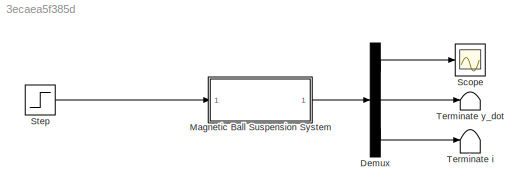
MODEL slx_3ecaea5f385d
KIND model
CONFIG AbsTol = auto
CONFIG EnableMultiTasking = off
CONFIG FixedStep = auto
CONFIG MaxStep = auto
CONFIG MinStep = auto
CONFIG RelTol = 1e-3
CONFIG SampleTimeConstraint = Unconstrained
CONFIG Solver = VariableStepAuto
CONFIG SolverName = VariableStepAuto
CONFIG StartTime = 0.0
CONFIG StopTime = 2.0
BLOCK [Demux] Demux
  DisplayOption = bar
  Outputs = 3
  Ports = [1, 3]
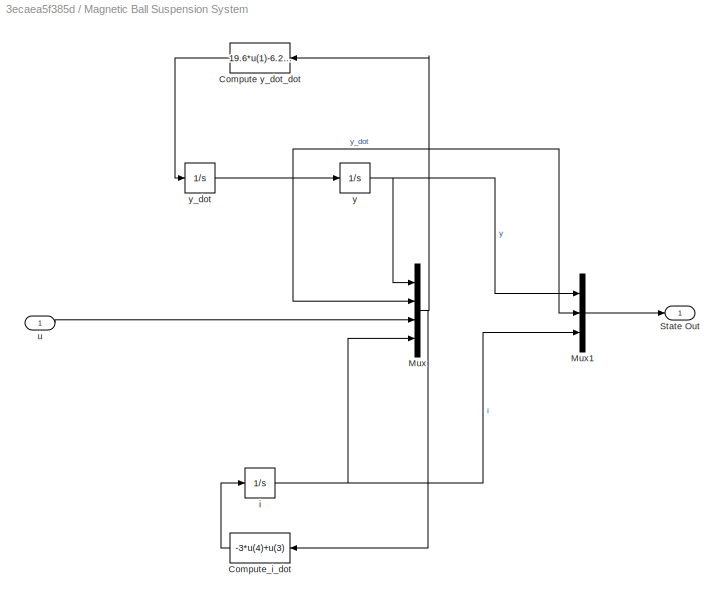
BLOCK [SubSystem] Magnetic Ball Suspension System
  Ports = [1, 1]
  RequestExecContextInheritance = off
BLOCK [Fcn] Magnetic Ball Suspension System/Compute y_dot_dot
  Expr = 19.6*u(1)-6.261*u(4)
BLOCK [Fcn] Magnetic Ball Suspension System/Compute_i_dot
  Expr = -3*u(4)+u(3)
BLOCK [Mux] Magnetic Ball Suspension System/Mux
  DisplayOption = bar
  Ports = [4, 1]
BLOCK [Mux] Magnetic Ball Suspension System/Mux1
  DisplayOption = bar
  Inputs = 3
  Ports = [3, 1]
BLOCK [Outport] Magnetic Ball Suspension System/State Out
  IconDisplay = Port number
BLOCK [Integrator] Magnetic Ball Suspension System/i
  Ports = [1, 1]
BLOCK [Inport] Magnetic Ball Suspension System/u
  IconDisplay = Port number
BLOCK [Integrator] Magnetic Ball Suspension System/y
  Ports = [1, 1]
BLOCK [Integrator] Magnetic Ball Suspension System/y_dot
  Ports = [1, 1]
BLOCK [Scope] Scope
  Floating = off
  NumInputPorts = 1
  Ports = [1]
  ScopeSpecificationString = Simulink.scopes.TimeScopeBlockCfg('CurrentConfiguration', extmgr.ConfigurationSet(extmgr.Configuration('Core','General UI',true,'FigureColor',[1 1 1]),extmgr.Configuration('Core','Source UI',true),extmgr.Configuration('Sources','WiredSimulink',true),extmgr.Configuration('Visuals','Time Domain',true,'SerializedDisplays',{struct('MinYLimReal','-169.35085','MaxYLimReal','18.81676','YLabelReal','','Mi...<+1514ch>
BLOCK [Step] Step
  SampleTime = 0
  Time = 0
BLOCK [Terminator] Terminate i
BLOCK [Terminator] Terminate y_dot
LINE Demux:1 -> Scope:1
LINE Demux:2 -> Terminate y_dot:1
LINE Demux:3 -> Terminate i:1
LINE Magnetic Ball Suspension System/Compute y_dot_dot:1 -> Magnetic Ball Suspension System/y_dot:1
LINE Magnetic Ball Suspension System/Compute_i_dot:1 -> Magnetic Ball Suspension System/i:1
LINE Magnetic Ball Suspension System/Mux1:1 -> Magnetic Ball Suspension System/State Out:1
NET Magnetic Ball Suspension System/Mux:1 -> Magnetic Ball Suspension System/Compute y_dot_dot:1, Magnetic Ball Suspension System/Compute_i_dot:1
NET Magnetic Ball Suspension System/i:1 -> Magnetic Ball Suspension System/Mux1:3, Magnetic Ball Suspension System/Mux:4
LINE Magnetic Ball Suspension System/u:1 -> Magnetic Ball Suspension System/Mux:3
NET Magnetic Ball Suspension System/y:1 -> Magnetic Ball Suspension System/Mux1:1, Magnetic Ball Suspension System/Mux:1
NET Magnetic Ball Suspension System/y_dot:1 -> Magnetic Ball Suspension System/Mux1:2, Magnetic Ball Suspension System/Mux:2, Magnetic Ball Suspension System/y:1
LINE Magnetic Ball Suspension System:1 -> Demux:1
LINE Step:1 -> Magnetic Ball Suspension System:1
note: NET lines group one-source signal fan-out (src -> all destinations, sorted); 1:1 wires keep LINE
